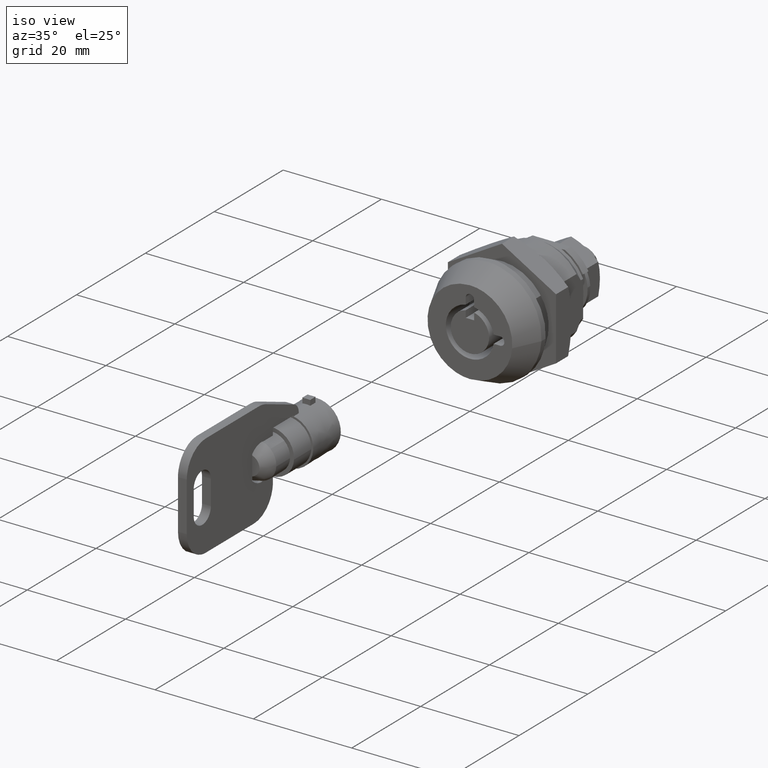
[diagram: clean part render]
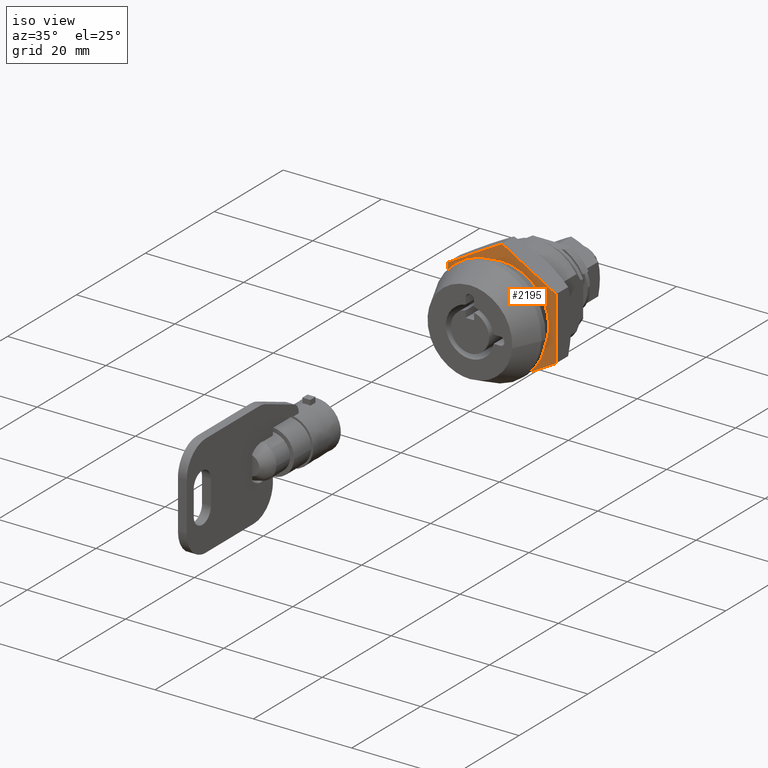
[diagram: same view with one face highlighted and labeled with its STEP entity id]
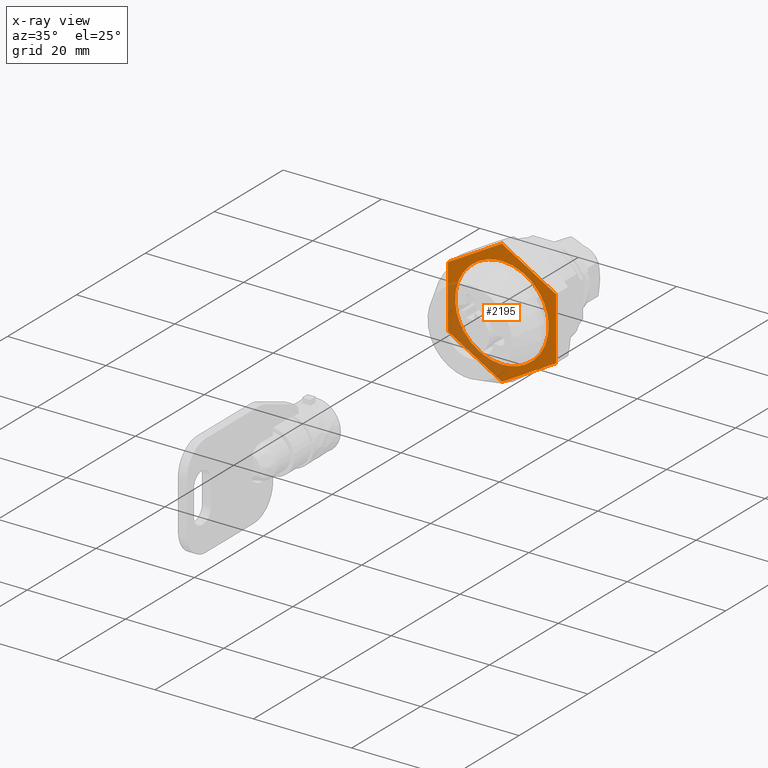
[diagram: x-ray of the same camera — body ghosted, the highlighted face saturated]
A machine part, iso view. The second image highlights one B-rep face of the part: STEP entity #2195.
The next image is the same camera in x-ray: the body ghosted, the highlighted face saturated — about 25% of this face is hidden behind the body in this view.
In plain terms, the highlighted face is a freeform B-spline surface patch.
Its self-contained STEP definition (entity closure, byte-faithful):
#1573=CARTESIAN_POINT('',(11.300003000000000,0.0,9.500000000000000));
#1574=VERTEX_POINT('',#1573);
#1575=CARTESIAN_POINT('',(11.300003000000000,-9.470714670457465,0.745361409506647));
#1576=VERTEX_POINT('',#1575);
#1577=CARTESIAN_POINT('',(11.300003000000000,0.0,9.500000000000000));
#1578=CARTESIAN_POINT('',(11.300003000000002,-8.781709670581606,9.500000000000000));
#1579=CARTESIAN_POINT('',(11.300002999999997,-9.470714670457465,0.745361409506647));
#1587=(BOUNDED_CURVE()B_SPLINE_CURVE(2,(#1577,#1578,#1579),.UNSPECIFIED.,.F.,.U.)B_SPLINE_CURVE_WITH_KNOTS((3,3),(0.0,0.236331300629432),.UNSPECIFIED.)CURVE()GEOMETRIC_REPRESENTATION_ITEM()RATIONAL_B_SPLINE_CURVE((1.0,0.723120658609104,0.969723356164856))REPRESENTATION_ITEM(''));
#1588=EDGE_CURVE('',#1574,#1576,#1587,.T.);
#1590=CARTESIAN_POINT('',(11.300003000000000,9.470714670457465,-0.745361409506649));
#1591=VERTEX_POINT('',#1590);
#1592=CARTESIAN_POINT('',(11.300002999999998,9.470714670457465,-0.745361409506649));
#1593=CARTESIAN_POINT('',(11.300002999999997,9.500000000000000,-0.373256016665408));
#1594=CARTESIAN_POINT('',(11.300003000000000,9.500000000000000,0.0));
#1595=CARTESIAN_POINT('',(11.300003000000002,9.500000000000000,9.500000000000000));
#1596=CARTESIAN_POINT('',(11.300003000000000,0.0,9.500000000000000));
#1604=(BOUNDED_CURVE()B_SPLINE_CURVE(2,(#1592,#1593,#1594,#1595,#1596),.UNSPECIFIED.,.F.,.U.)B_SPLINE_CURVE_WITH_KNOTS((3,2,3),(0.736331300629432,0.750000000000000,1.0),.UNSPECIFIED.)CURVE()GEOMETRIC_REPRESENTATION_ITEM()RATIONAL_B_SPLINE_CURVE((0.969723356164856,0.983986122577444,1.0,0.707106781186548,1.0))REPRESENTATION_ITEM(''));
#1605=EDGE_CURVE('',#1591,#1574,#1604,.T.);
#1672=CARTESIAN_POINT('',(11.300003000000000,0.0,-9.500000000000000));
#1673=VERTEX_POINT('',#1672);
#1674=CARTESIAN_POINT('',(11.300002999999997,-9.470714670457465,0.745361409506647));
#1675=CARTESIAN_POINT('',(11.300002999999997,-9.499999999999998,0.373256016665407));
#1676=CARTESIAN_POINT('',(11.300003000000000,-9.500000000000000,0.0));
#1677=CARTESIAN_POINT('',(11.300003000000002,-9.500000000000000,-9.500000000000000));
#1678=CARTESIAN_POINT('',(11.300003000000000,0.0,-9.500000000000000));
#1686=(BOUNDED_CURVE()B_SPLINE_CURVE(2,(#1674,#1675,#1676,#1677,#1678),.UNSPECIFIED.,.F.,.U.)B_SPLINE_CURVE_WITH_KNOTS((3,2,3),(0.236331300629432,0.250000000000000,0.500000000000000),.UNSPECIFIED.)CURVE()GEOMETRIC_REPRESENTATION_ITEM()RATIONAL_B_SPLINE_CURVE((0.969723356164856,0.983986122577444,1.0,0.707106781186548,1.0))REPRESENTATION_ITEM(''));
#1687=EDGE_CURVE('',#1576,#1673,#1686,.T.);
#1721=CARTESIAN_POINT('',(11.300003000000000,0.0,-9.500000000000000));
#1722=CARTESIAN_POINT('',(11.300003000000000,8.781709670581661,-9.500000000000000));
#1723=CARTESIAN_POINT('',(11.300003000000002,9.470714670457465,-0.745361409506649));
#1731=(BOUNDED_CURVE()B_SPLINE_CURVE(2,(#1721,#1722,#1723),.UNSPECIFIED.,.F.,.U.)B_SPLINE_CURVE_WITH_KNOTS((3,3),(0.500000000000000,0.736331300629433),.UNSPECIFIED.)CURVE()GEOMETRIC_REPRESENTATION_ITEM()RATIONAL_B_SPLINE_CURVE((1.0,0.723120658609102,0.969723356164858))REPRESENTATION_ITEM(''));
#1732=EDGE_CURVE('',#1673,#1591,#1731,.T.);
#2040=CARTESIAN_POINT('',(11.300003000000000,-0.000015000010331,12.701713660249240));
#2041=VERTEX_POINT('',#2040);
#2049=CARTESIAN_POINT('',(11.300003000000000,11.0,6.350860000000099));
#2050=VERTEX_POINT('',#2049);
#2056=CARTESIAN_POINT('',(11.300003000000000,11.0,6.350860000000099));
#2057=CARTESIAN_POINT('',(11.300003000000000,-0.000015000010331,12.701713660249240));
#2058=QUASI_UNIFORM_CURVE('',1,(#2056,#2057),.UNSPECIFIED.,.F.,.U.);
#2059=EDGE_CURVE('',#2050,#2041,#2058,.T.);
#2072=CARTESIAN_POINT('',(11.300003000000000,11.0,-6.350835679463490));
#2073=VERTEX_POINT('',#2072);
#2079=CARTESIAN_POINT('',(11.300003000000000,11.0,-6.350835679463490));
#2080=CARTESIAN_POINT('',(11.300003000000000,11.0,6.350860000000099));
#2081=QUASI_UNIFORM_CURVE('',1,(#2079,#2080),.UNSPECIFIED.,.F.,.U.);
#2082=EDGE_CURVE('',#2073,#2050,#2081,.T.);
#2100=CARTESIAN_POINT('',(11.300003000000000,0.0,-12.701706000000000));
#2101=VERTEX_POINT('',#2100);
#2107=CARTESIAN_POINT('',(11.300003000000000,0.0,-12.701706000000000));
#2108=CARTESIAN_POINT('',(11.300003000000000,11.0,-6.350835679463490));
#2109=QUASI_UNIFORM_CURVE('',1,(#2107,#2108),.UNSPECIFIED.,.F.,.U.);
#2110=EDGE_CURVE('',#2101,#2073,#2109,.T.);
#2123=CARTESIAN_POINT('',(11.300003000000000,-11.000015000000101,-6.350844339745850));
#2124=VERTEX_POINT('',#2123);
#2130=CARTESIAN_POINT('',(11.300003000000000,-11.000015000000101,-6.350844339745850));
#2131=CARTESIAN_POINT('',(11.300003000000000,0.0,-12.701706000000000));
#2132=QUASI_UNIFORM_CURVE('',1,(#2130,#2131),.UNSPECIFIED.,.F.,.U.);
#2133=EDGE_CURVE('',#2124,#2101,#2132,.T.);
#2145=CARTESIAN_POINT('',(11.300003000000000,-11.000015000000101,6.350860000000099));
#2146=VERTEX_POINT('',#2145);
#2152=CARTESIAN_POINT('',(11.300003000000000,-11.000015000000101,6.350860000000099));
#2153=CARTESIAN_POINT('',(11.300003000000000,-11.000015000000101,-6.350844339745850));
#2154=QUASI_UNIFORM_CURVE('',1,(#2152,#2153),.UNSPECIFIED.,.F.,.U.);
#2155=EDGE_CURVE('',#2146,#2124,#2154,.T.);
#2168=CARTESIAN_POINT('',(11.300003000000000,-0.000015000010331,12.701713660249240));
#2169=CARTESIAN_POINT('',(11.300003000000000,-11.000015000000101,6.350860000000099));
#2170=QUASI_UNIFORM_CURVE('',1,(#2168,#2169),.UNSPECIFIED.,.F.,.U.);
#2171=EDGE_CURVE('',#2041,#2146,#2170,.T.);
#2176=CARTESIAN_POINT('',(11.300003000000000,-12.098916119650610,13.970614423041930));
#2177=CARTESIAN_POINT('',(11.300003000000000,12.098901316345970,13.970614423041930));
#2178=CARTESIAN_POINT('',(11.300003000000000,-12.098916119650610,-13.970607444165500));
#2179=CARTESIAN_POINT('',(11.300003000000000,12.098901316345970,-13.970607444165500));
#2180=B_SPLINE_SURFACE_WITH_KNOTS('',1,1,((#2176,#2178),(#2177,#2179)),.UNSPECIFIED.,.F.,.F.,.U.,(2,2),(2,2),(0.0,24.197817435996580),(0.0,27.941221867207432),.UNSPECIFIED.);
#2181=ORIENTED_EDGE('',*,*,#2171,.F.);
#2182=ORIENTED_EDGE('',*,*,#2059,.F.);
#2183=ORIENTED_EDGE('',*,*,#2082,.F.);
#2184=ORIENTED_EDGE('',*,*,#2110,.F.);
#2185=ORIENTED_EDGE('',*,*,#2133,.F.);
#2186=ORIENTED_EDGE('',*,*,#2155,.F.);
#2187=EDGE_LOOP('',(#2181,#2182,#2183,#2184,#2185,#2186));
#2188=FACE_OUTER_BOUND('',#2187,.T.);
#2189=ORIENTED_EDGE('',*,*,#1732,.T.);
#2190=ORIENTED_EDGE('',*,*,#1605,.T.);
#2191=ORIENTED_EDGE('',*,*,#1588,.T.);
#2192=ORIENTED_EDGE('',*,*,#1687,.T.);
#2193=EDGE_LOOP('',(#2189,#2190,#2191,#2192));
#2194=FACE_BOUND('',#2193,.T.);
#2195=ADVANCED_FACE('',(#2188,#2194),#2180,.T.);